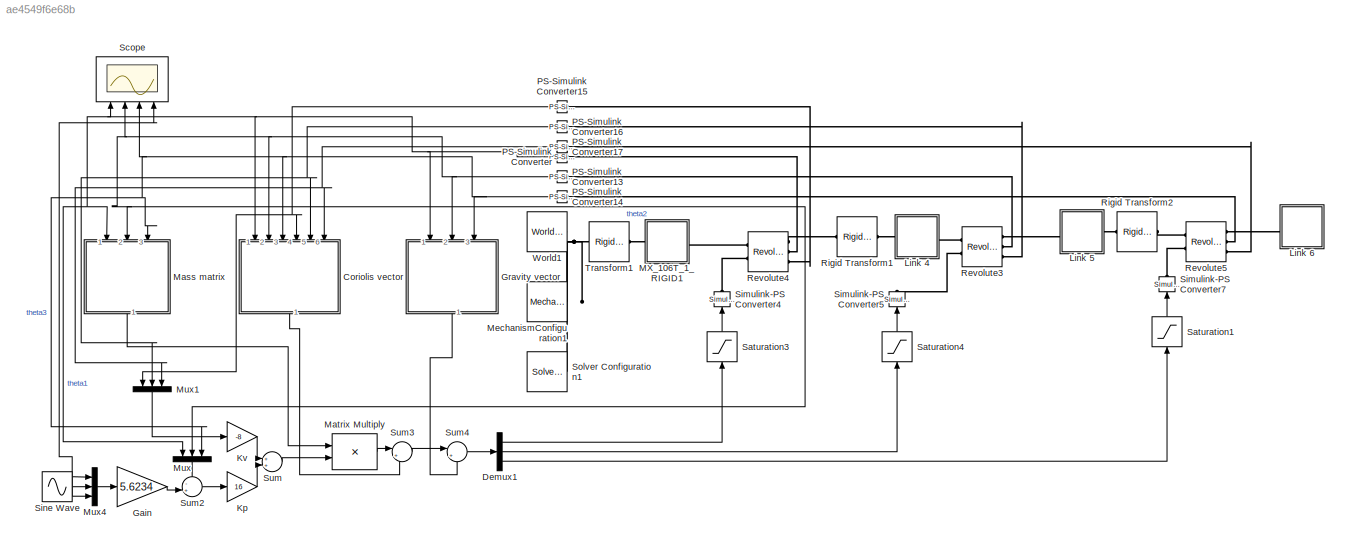
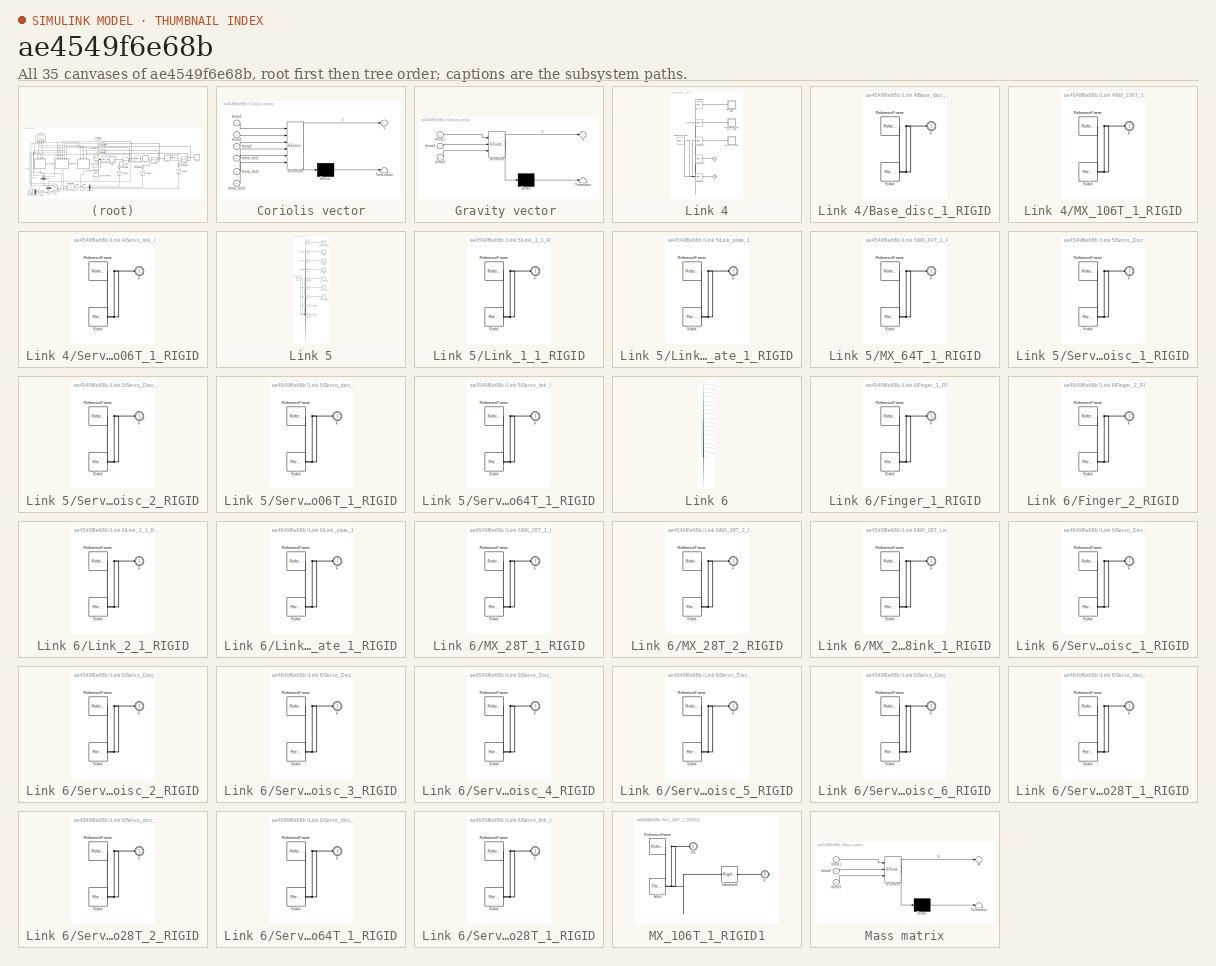
[diagram: thumbnail index - all 35 canvases of the model, root first then tree order]
MODEL slx_ae4549f6e68b
KIND model
CONFIG AbsTol = auto
CONFIG EnableMultiTasking = off
CONFIG FixedStep = auto
CONFIG MaxStep = 1e-2
CONFIG MinStep = auto
CONFIG RelTol = 1e-3
CONFIG SampleTimeConstraint = Unconstrained
CONFIG Solver = VariableStepAuto
CONFIG SolverName = VariableStepAuto
CONFIG StartTime = 0.0
CONFIG StopTime = 10
WORKSPACE source: external: MATLAB File  (data not in archive)
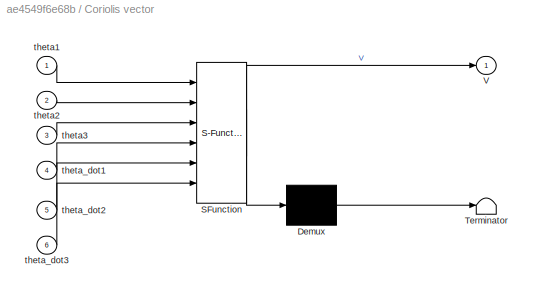
BLOCK [SubSystem] Coriolis vector
  ErrorFcn = Stateflow.Translate.translate
  PermitHierarchicalResolution = ExplicitOnly
  Ports = [6, 1]
  RequestExecContextInheritance = off
  SFBlockType = MATLAB Function
  TreatAsAtomicUnit = on
BLOCK [Demux] Coriolis vector/ Demux 
  Outputs = 1
  Ports = [1, 1]
BLOCK [S-Function] Coriolis vector/ SFunction 
  EnableBusSupport = on
  FunctionName = sf_sfun
  PortCounts = [6 2]
  Ports = [6, 2]
  SFcnIsStateOwnerBlock = off
  SFunctionDeploymentMode = off
  Tag = Stateflow S-Function 4
BLOCK [Terminator] Coriolis vector/ Terminator 
BLOCK [Outport] Coriolis vector/V
  IconDisplay = Port number
BLOCK [Inport] Coriolis vector/theta1
  IconDisplay = Port number
BLOCK [Inport] Coriolis vector/theta2
  IconDisplay = Port number
  Port = 2
BLOCK [Inport] Coriolis vector/theta3
  IconDisplay = Port number
  Port = 3
BLOCK [Inport] Coriolis vector/theta_dot1
  IconDisplay = Port number
  Port = 4
BLOCK [Inport] Coriolis vector/theta_dot2
  IconDisplay = Port number
  Port = 5
BLOCK [Inport] Coriolis vector/theta_dot3
  IconDisplay = Port number
  Port = 6
BLOCK [Demux] Demux1
  DisplayOption = bar
  Outputs = 3
  Ports = [1, 3]
BLOCK [Gain] Gain
  Gain = 5.6234
  OutDataTypeStr = Inherit: Inherit via internal rule
  ParamDataTypeStr = Inherit: Inherit via internal rule
  SaturateOnIntegerOverflow = off
BLOCK [SubSystem] Gravity vector 
  ErrorFcn = Stateflow.Translate.translate
  PermitHierarchicalResolution = ExplicitOnly
  Ports = [3, 1]
  RequestExecContextInheritance = off
  SFBlockType = MATLAB Function
  TreatAsAtomicUnit = on
BLOCK [Demux] Gravity vector / Demux 
  Outputs = 1
  Ports = [1, 1]
BLOCK [S-Function] Gravity vector / SFunction 
  EnableBusSupport = on
  FunctionName = sf_sfun
  PortCounts = [3 2]
  Ports = [3, 2]
  SFcnIsStateOwnerBlock = off
  SFunctionDeploymentMode = off
  Tag = Stateflow S-Function 5
BLOCK [Terminator] Gravity vector / Terminator 
BLOCK [Outport] Gravity vector /G
  IconDisplay = Port number
BLOCK [Inport] Gravity vector /theta1
  IconDisplay = Port number
BLOCK [Inport] Gravity vector /theta2
  IconDisplay = Port number
  Port = 2
BLOCK [Inport] Gravity vector /theta3
  IconDisplay = Port number
  Port = 3
BLOCK [Gain] Kp
  Gain = 16
  OutDataTypeStr = Inherit: Inherit via internal rule
  ParamDataTypeStr = Inherit: Inherit via internal rule
  SaturateOnIntegerOverflow = off
BLOCK [Gain] Kv
  Gain = -8
  OutDataTypeStr = Inherit: Inherit via internal rule
  ParamDataTypeStr = Inherit: Inherit via internal rule
  SaturateOnIntegerOverflow = off
BLOCK [SubSystem] Link 4
  Ports = [0, 0, 0, 0, 0, 1, 1]
  RequestExecContextInheritance = off
BLOCK [SubSystem] Link 4/Base_disc_1_RIGID
  Ports = [0, 0, 0, 0, 0, 1]
  RequestExecContextInheritance = off
BLOCK [PMIOPort] Link 4/Base_disc_1_RIGID/F
  Side = Left
BLOCK [Reference] Link 4/Base_disc_1_RIGID/ReferenceFrame  REF=sm_lib/Frames and
Transforms/Reference
Frame
  Ports = [0, 0, 0, 0, 0, 0, 1]
  SourceBlock = sm_lib/Frames and\nTransforms/Reference\nFrame
  SourceProductBaseCode = MS
  SourceProductName = Simscape Multibody
  SourceType = Reference\nFrame
BLOCK [Reference] Link 4/Base_disc_1_RIGID/Solid  REF=sm_lib/Body Elements/File Solid
  Ports = [0, 0, 0, 0, 0, 0, 1]
  SourceBlock = sm_lib/Body Elements/File Solid
  SourceProductBaseCode = MS
  SourceProductName = Simscape Multibody
  SourceType = File Solid
BLOCK [PMIOPort] Link 4/F
  Port = 2
  Side = Right
BLOCK [PMIOPort] Link 4/F1
  Side = Left
BLOCK [SubSystem] Link 4/MX_106T_1_RIGID
  Ports = [0, 0, 0, 0, 0, 1]
  RequestExecContextInheritance = off
BLOCK [PMIOPort] Link 4/MX_106T_1_RIGID/F
  Side = Left
BLOCK [Reference] Link 4/MX_106T_1_RIGID/ReferenceFrame  REF=sm_lib/Frames and
Transforms/Reference
Frame
  Ports = [0, 0, 0, 0, 0, 0, 1]
  SourceBlock = sm_lib/Frames and\nTransforms/Reference\nFrame
  SourceProductBaseCode = MS
  SourceProductName = Simscape Multibody
  SourceType = Reference\nFrame
BLOCK [Reference] Link 4/MX_106T_1_RIGID/Solid  REF=sm_lib/Body Elements/File Solid
  Ports = [0, 0, 0, 0, 0, 0, 1]
  SourceBlock = sm_lib/Body Elements/File Solid
  SourceProductBaseCode = MS
  SourceProductName = Simscape Multibody
  SourceType = File Solid
BLOCK [Reference] Link 4/ReferenceFrame  REF=sm_lib/Frames and
Transforms/Reference
Frame
  Ports = [0, 0, 0, 0, 0, 0, 1]
  SourceBlock = sm_lib/Frames and\nTransforms/Reference\nFrame
  SourceProductBaseCode = MS
  SourceProductName = Simscape Multibody
  SourceType = Reference\nFrame
BLOCK [SubSystem] Link 4/Servo_link_link_MX_106T_1_RIGID
  Ports = [0, 0, 0, 0, 0, 1]
  RequestExecContextInheritance = off
BLOCK [PMIOPort] Link 4/Servo_link_link_MX_106T_1_RIGID/F
  Side = Left
BLOCK [Reference] Link 4/Servo_link_link_MX_106T_1_RIGID/ReferenceFrame  REF=sm_lib/Frames and
Transforms/Reference
Frame
  Ports = [0, 0, 0, 0, 0, 0, 1]
  SourceBlock = sm_lib/Frames and\nTransforms/Reference\nFrame
  SourceProductBaseCode = MS
  SourceProductName = Simscape Multibody
  SourceType = Reference\nFrame
BLOCK [Reference] Link 4/Servo_link_link_MX_106T_1_RIGID/Solid  REF=sm_lib/Body Elements/File Solid
  Ports = [0, 0, 0, 0, 0, 0, 1]
  SourceBlock = sm_lib/Body Elements/File Solid
  SourceProductBaseCode = MS
  SourceProductName = Simscape Multibody
  SourceType = File Solid
BLOCK [Reference] Link 4/Transform  REF=sm_lib/Frames and
Transforms/Rigid
Transform
  Ports = [0, 0, 0, 0, 0, 1, 1]
  SourceBlock = sm_lib/Frames and\nTransforms/Rigid\nTransform
  SourceProductBaseCode = MS
  SourceProductName = Simscape Multibody
  SourceType = Rigid\nTransform
BLOCK [Reference] Link 4/Transform1  REF=sm_lib/Frames and
Transforms/Rigid
Transform
  Ports = [0, 0, 0, 0, 0, 1, 1]
  SourceBlock = sm_lib/Frames and\nTransforms/Rigid\nTransform
  SourceProductBaseCode = MS
  SourceProductName = Simscape Multibody
  SourceType = Rigid\nTransform
BLOCK [Reference] Link 4/Transform2  REF=sm_lib/Frames and
Transforms/Rigid
Transform
  Ports = [0, 0, 0, 0, 0, 1, 1]
  SourceBlock = sm_lib/Frames and\nTransforms/Rigid\nTransform
  SourceProductBaseCode = MS
  SourceProductName = Simscape Multibody
  SourceType = Rigid\nTransform
BLOCK [Reference] Link 4/Transform3  REF=sm_lib/Frames and
Transforms/Rigid
Transform
  Ports = [0, 0, 0, 0, 0, 1, 1]
  SourceBlock = sm_lib/Frames and\nTransforms/Rigid\nTransform
  SourceProductBaseCode = MS
  SourceProductName = Simscape Multibody
  SourceType = Rigid\nTransform
BLOCK [Reference] Link 4/Transform4  REF=sm_lib/Frames and
Transforms/Rigid
Transform
  Ports = [0, 0, 0, 0, 0, 1, 1]
  SourceBlock = sm_lib/Frames and\nTransforms/Rigid\nTransform
  SourceProductBaseCode = MS
  SourceProductName = Simscape Multibody
  SourceType = Rigid\nTransform
BLOCK [SubSystem] Link 5
  Ports = [0, 0, 0, 0, 0, 1, 1]
  RequestExecContextInheritance = off
BLOCK [PMIOPort] Link 5/F
  Side = Left
BLOCK [PMIOPort] Link 5/F1
  Port = 2
  Side = Right
BLOCK [SubSystem] Link 5/Link_1_1_RIGID
  Ports = [0, 0, 0, 0, 0, 1]
  RequestExecContextInheritance = off
BLOCK [PMIOPort] Link 5/Link_1_1_RIGID/F
  Side = Left
BLOCK [Reference] Link 5/Link_1_1_RIGID/ReferenceFrame  REF=sm_lib/Frames and
Transforms/Reference
Frame
  Ports = [0, 0, 0, 0, 0, 0, 1]
  SourceBlock = sm_lib/Frames and\nTransforms/Reference\nFrame
  SourceProductBaseCode = MS
  SourceProductName = Simscape Multibody
  SourceType = Reference\nFrame
BLOCK [Reference] Link 5/Link_1_1_RIGID/Solid  REF=sm_lib/Body Elements/File Solid
  Ports = [0, 0, 0, 0, 0, 0, 1]
  SourceBlock = sm_lib/Body Elements/File Solid
  SourceProductBaseCode = MS
  SourceProductName = Simscape Multibody
  SourceType = File Solid
BLOCK [SubSystem] Link 5/Link_plate_1_RIGID
  Ports = [0, 0, 0, 0, 0, 1]
  RequestExecContextInheritance = off
BLOCK [PMIOPort] Link 5/Link_plate_1_RIGID/F
  Side = Left
BLOCK [Reference] Link 5/Link_plate_1_RIGID/ReferenceFrame  REF=sm_lib/Frames and
Transforms/Reference
Frame
  Ports = [0, 0, 0, 0, 0, 0, 1]
  SourceBlock = sm_lib/Frames and\nTransforms/Reference\nFrame
  SourceProductBaseCode = MS
  SourceProductName = Simscape Multibody
  SourceType = Reference\nFrame
BLOCK [Reference] Link 5/Link_plate_1_RIGID/Solid  REF=sm_lib/Body Elements/File Solid
  Ports = [0, 0, 0, 0, 0, 0, 1]
  SourceBlock = sm_lib/Body Elements/File Solid
  SourceProductBaseCode = MS
  SourceProductName = Simscape Multibody
  SourceType = File Solid
BLOCK [SubSystem] Link 5/MX_64T_1_RIGID
  Ports = [0, 0, 0, 0, 0, 1]
  RequestExecContextInheritance = off
BLOCK [PMIOPort] Link 5/MX_64T_1_RIGID/F
  Side = Left
BLOCK [Reference] Link 5/MX_64T_1_RIGID/ReferenceFrame  REF=sm_lib/Frames and
Transforms/Reference
Frame
  Ports = [0, 0, 0, 0, 0, 0, 1]
  SourceBlock = sm_lib/Frames and\nTransforms/Reference\nFrame
  SourceProductBaseCode = MS
  SourceProductName = Simscape Multibody
  SourceType = Reference\nFrame
BLOCK [Reference] Link 5/MX_64T_1_RIGID/Solid  REF=sm_lib/Body Elements/File Solid
  Ports = [0, 0, 0, 0, 0, 0, 1]
  SourceBlock = sm_lib/Body Elements/File Solid
  SourceProductBaseCode = MS
  SourceProductName = Simscape Multibody
  SourceType = File Solid
BLOCK [Reference] Link 5/ReferenceFrame  REF=sm_lib/Frames and
Transforms/Reference
Frame
  Ports = [0, 0, 0, 0, 0, 0, 1]
  SourceBlock = sm_lib/Frames and\nTransforms/Reference\nFrame
  SourceProductBaseCode = MS
  SourceProductName = Simscape Multibody
  SourceType = Reference\nFrame
BLOCK [SubSystem] Link 5/Servo_Disc_1_RIGID
  Ports = [0, 0, 0, 0, 0, 1]
  RequestExecContextInheritance = off
BLOCK [PMIOPort] Link 5/Servo_Disc_1_RIGID/F
  Side = Left
BLOCK [Reference] Link 5/Servo_Disc_1_RIGID/ReferenceFrame  REF=sm_lib/Frames and
Transforms/Reference
Frame
  Ports = [0, 0, 0, 0, 0, 0, 1]
  SourceBlock = sm_lib/Frames and\nTransforms/Reference\nFrame
  SourceProductBaseCode = MS
  SourceProductName = Simscape Multibody
  SourceType = Reference\nFrame
BLOCK [Reference] Link 5/Servo_Disc_1_RIGID/Solid  REF=sm_lib/Body Elements/File Solid
  Ports = [0, 0, 0, 0, 0, 0, 1]
  SourceBlock = sm_lib/Body Elements/File Solid
  SourceProductBaseCode = MS
  SourceProductName = Simscape Multibody
  SourceType = File Solid
BLOCK [SubSystem] Link 5/Servo_Disc_2_RIGID
  Ports = [0, 0, 0, 0, 0, 1]
  RequestExecContextInheritance = off
BLOCK [PMIOPort] Link 5/Servo_Disc_2_RIGID/F
  Side = Left
BLOCK [Reference] Link 5/Servo_Disc_2_RIGID/ReferenceFrame  REF=sm_lib/Frames and
Transforms/Reference
Frame
  Ports = [0, 0, 0, 0, 0, 0, 1]
  SourceBlock = sm_lib/Frames and\nTransforms/Reference\nFrame
  SourceProductBaseCode = MS
  SourceProductName = Simscape Multibody
  SourceType = Reference\nFrame
BLOCK [Reference] Link 5/Servo_Disc_2_RIGID/Solid  REF=sm_lib/Body Elements/File Solid
  Ports = [0, 0, 0, 0, 0, 0, 1]
  SourceBlock = sm_lib/Body Elements/File Solid
  SourceProductBaseCode = MS
  SourceProductName = Simscape Multibody
  SourceType = File Solid
BLOCK [SubSystem] Link 5/Servo_disc_link_MX_106T_1_RIGID
  Ports = [0, 0, 0, 0, 0, 1]
  RequestExecContextInheritance = off
BLOCK [PMIOPort] Link 5/Servo_disc_link_MX_106T_1_RIGID/F
  Side = Left
BLOCK [Reference] Link 5/Servo_disc_link_MX_106T_1_RIGID/ReferenceFrame  REF=sm_lib/Frames and
Transforms/Reference
Frame
  Ports = [0, 0, 0, 0, 0, 0, 1]
  SourceBlock = sm_lib/Frames and\nTransforms/Reference\nFrame
  SourceProductBaseCode = MS
  SourceProductName = Simscape Multibody
  SourceType = Reference\nFrame
BLOCK [Reference] Link 5/Servo_disc_link_MX_106T_1_RIGID/Solid  REF=sm_lib/Body Elements/File Solid
  Ports = [0, 0, 0, 0, 0, 0, 1]
  SourceBlock = sm_lib/Body Elements/File Solid
  SourceProductBaseCode = MS
  SourceProductName = Simscape Multibody
  SourceType = File Solid
BLOCK [SubSystem] Link 5/Servo_link_link_MX_64T_1_RIGID
  Ports = [0, 0, 0, 0, 0, 1]
  RequestExecContextInheritance = off
BLOCK [PMIOPort] Link 5/Servo_link_link_MX_64T_1_RIGID/F
  Side = Left
BLOCK [Reference] Link 5/Servo_link_link_MX_64T_1_RIGID/ReferenceFrame  REF=sm_lib/Frames and
Transforms/Reference
Frame
  Ports = [0, 0, 0, 0, 0, 0, 1]
  SourceBlock = sm_lib/Frames and\nTransforms/Reference\nFrame
  SourceProductBaseCode = MS
  SourceProductName = Simscape Multibody
  SourceType = Reference\nFrame
BLOCK [Reference] Link 5/Servo_link_link_MX_64T_1_RIGID/Solid  REF=sm_lib/Body Elements/File Solid
  Ports = [0, 0, 0, 0, 0, 0, 1]
  SourceBlock = sm_lib/Body Elements/File Solid
  SourceProductBaseCode = MS
  SourceProductName = Simscape Multibody
  SourceType = File Solid
BLOCK [Reference] Link 5/Transform  REF=sm_lib/Frames and
Transforms/Rigid
Transform
  Ports = [0, 0, 0, 0, 0, 1, 1]
  SourceBlock = sm_lib/Frames and\nTransforms/Rigid\nTransform
  SourceProductBaseCode = MS
  SourceProductName = Simscape Multibody
  SourceType = Rigid\nTransform
BLOCK [Reference] Link 5/Transform1  REF=sm_lib/Frames and
Transforms/Rigid
Transform
  Ports = [0, 0, 0, 0, 0, 1, 1]
  SourceBlock = sm_lib/Frames and\nTransforms/Rigid\nTransform
  SourceProductBaseCode = MS
  SourceProductName = Simscape Multibody
  SourceType = Rigid\nTransform
BLOCK [Reference] Link 5/Transform2  REF=sm_lib/Frames and
Transforms/Rigid
Transform
  Ports = [0, 0, 0, 0, 0, 1, 1]
  SourceBlock = sm_lib/Frames and\nTransforms/Rigid\nTransform
  SourceProductBaseCode = MS
  SourceProductName = Simscape Multibody
  SourceType = Rigid\nTransform
BLOCK [Reference] Link 5/Transform3  REF=sm_lib/Frames and
Transforms/Rigid
Transform
  Ports = [0, 0, 0, 0, 0, 1, 1]
  SourceBlock = sm_lib/Frames and\nTransforms/Rigid\nTransform
  SourceProductBaseCode = MS
  SourceProductName = Simscape Multibody
  SourceType = Rigid\nTransform
BLOCK [Reference] Link 5/Transform4  REF=sm_lib/Frames and
Transforms/Rigid
Transform
  Ports = [0, 0, 0, 0, 0, 1, 1]
  SourceBlock = sm_lib/Frames and\nTransforms/Rigid\nTransform
  SourceProductBaseCode = MS
  SourceProductName = Simscape Multibody
  SourceType = Rigid\nTransform
BLOCK [Reference] Link 5/Transform5  REF=sm_lib/Frames and
Transforms/Rigid
Transform
  Ports = [0, 0, 0, 0, 0, 1, 1]
  SourceBlock = sm_lib/Frames and\nTransforms/Rigid\nTransform
  SourceProductBaseCode = MS
  SourceProductName = Simscape Multibody
  SourceType = Rigid\nTransform
BLOCK [Reference] Link 5/Transform6  REF=sm_lib/Frames and
Transforms/Rigid
Transform
  Ports = [0, 0, 0, 0, 0, 1, 1]
  SourceBlock = sm_lib/Frames and\nTransforms/Rigid\nTransform
  SourceProductBaseCode = MS
  SourceProductName = Simscape Multibody
  SourceType = Rigid\nTransform
BLOCK [Reference] Link 5/Transform7  REF=sm_lib/Frames and
Transforms/Rigid
Transform
  Ports = [0, 0, 0, 0, 0, 1, 1]
  SourceBlock = sm_lib/Frames and\nTransforms/Rigid\nTransform
  SourceProductBaseCode = MS
  SourceProductName = Simscape Multibody
  SourceType = Rigid\nTransform
BLOCK [Reference] Link 5/Transform8  REF=sm_lib/Frames and
Transforms/Rigid
Transform
  Ports = [0, 0, 0, 0, 0, 1, 1]
  SourceBlock = sm_lib/Frames and\nTransforms/Rigid\nTransform
  SourceProductBaseCode = MS
  SourceProductName = Simscape Multibody
  SourceType = Rigid\nTransform
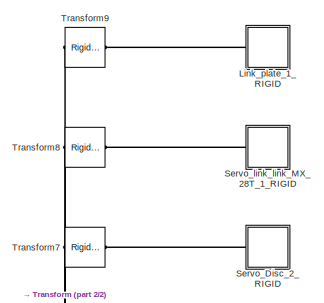
[diagram: Link 6 - part 1/2, full width, top band]
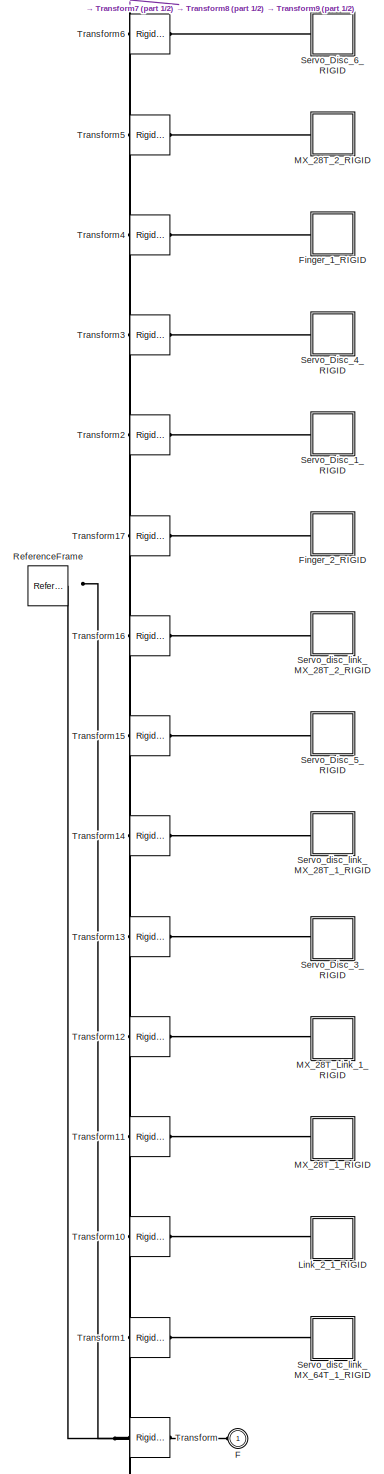
[diagram: Link 6 - part 2/2, full width, middle band]
BLOCK [SubSystem] Link 6
  Ports = [0, 0, 0, 0, 0, 1]
  RequestExecContextInheritance = off
BLOCK [PMIOPort] Link 6/F
  Side = Left
BLOCK [SubSystem] Link 6/Finger_1_RIGID
  Ports = [0, 0, 0, 0, 0, 1]
  RequestExecContextInheritance = off
BLOCK [PMIOPort] Link 6/Finger_1_RIGID/F
  Side = Left
BLOCK [Reference] Link 6/Finger_1_RIGID/ReferenceFrame  REF=sm_lib/Frames and
Transforms/Reference
Frame
  Ports = [0, 0, 0, 0, 0, 0, 1]
  SourceBlock = sm_lib/Frames and\nTransforms/Reference\nFrame
  SourceProductBaseCode = MS
  SourceProductName = Simscape Multibody
  SourceType = Reference\nFrame
BLOCK [Reference] Link 6/Finger_1_RIGID/Solid  REF=sm_lib/Body Elements/File Solid
  Ports = [0, 0, 0, 0, 0, 0, 1]
  SourceBlock = sm_lib/Body Elements/File Solid
  SourceProductBaseCode = MS
  SourceProductName = Simscape Multibody
  SourceType = File Solid
BLOCK [SubSystem] Link 6/Finger_2_RIGID
  Ports = [0, 0, 0, 0, 0, 1]
  RequestExecContextInheritance = off
BLOCK [PMIOPort] Link 6/Finger_2_RIGID/F
  Side = Left
BLOCK [Reference] Link 6/Finger_2_RIGID/ReferenceFrame  REF=sm_lib/Frames and
Transforms/Reference
Frame
  Ports = [0, 0, 0, 0, 0, 0, 1]
  SourceBlock = sm_lib/Frames and\nTransforms/Reference\nFrame
  SourceProductBaseCode = MS
  SourceProductName = Simscape Multibody
  SourceType = Reference\nFrame
BLOCK [Reference] Link 6/Finger_2_RIGID/Solid  REF=sm_lib/Body Elements/File Solid
  Ports = [0, 0, 0, 0, 0, 0, 1]
  SourceBlock = sm_lib/Body Elements/File Solid
  SourceProductBaseCode = MS
  SourceProductName = Simscape Multibody
  SourceType = File Solid
BLOCK [SubSystem] Link 6/Link_2_1_RIGID
  Ports = [0, 0, 0, 0, 0, 1]
  RequestExecContextInheritance = off
BLOCK [PMIOPort] Link 6/Link_2_1_RIGID/F
  Side = Left
BLOCK [Reference] Link 6/Link_2_1_RIGID/ReferenceFrame  REF=sm_lib/Frames and
Transforms/Reference
Frame
  Ports = [0, 0, 0, 0, 0, 0, 1]
  SourceBlock = sm_lib/Frames and\nTransforms/Reference\nFrame
  SourceProductBaseCode = MS
  SourceProductName = Simscape Multibody
  SourceType = Reference\nFrame
BLOCK [Reference] Link 6/Link_2_1_RIGID/Solid  REF=sm_lib/Body Elements/File Solid
  Ports = [0, 0, 0, 0, 0, 0, 1]
  SourceBlock = sm_lib/Body Elements/File Solid
  SourceProductBaseCode = MS
  SourceProductName = Simscape Multibody
  SourceType = File Solid
BLOCK [SubSystem] Link 6/Link_plate_1_RIGID
  Ports = [0, 0, 0, 0, 0, 1]
  RequestExecContextInheritance = off
BLOCK [PMIOPort] Link 6/Link_plate_1_RIGID/F
  Side = Left
BLOCK [Reference] Link 6/Link_plate_1_RIGID/ReferenceFrame  REF=sm_lib/Frames and
Transforms/Reference
Frame
  Ports = [0, 0, 0, 0, 0, 0, 1]
  SourceBlock = sm_lib/Frames and\nTransforms/Reference\nFrame
  SourceProductBaseCode = MS
  SourceProductName = Simscape Multibody
  SourceType = Reference\nFrame
BLOCK [Reference] Link 6/Link_plate_1_RIGID/Solid  REF=sm_lib/Body Elements/File Solid
  Ports = [0, 0, 0, 0, 0, 0, 1]
  SourceBlock = sm_lib/Body Elements/File Solid
  SourceProductBaseCode = MS
  SourceProductName = Simscape Multibody
  SourceType = File Solid
BLOCK [SubSystem] Link 6/MX_28T_1_RIGID
  Ports = [0, 0, 0, 0, 0, 1]
  RequestExecContextInheritance = off
BLOCK [PMIOPort] Link 6/MX_28T_1_RIGID/F
  Side = Left
BLOCK [Reference] Link 6/MX_28T_1_RIGID/ReferenceFrame  REF=sm_lib/Frames and
Transforms/Reference
Frame
  Ports = [0, 0, 0, 0, 0, 0, 1]
  SourceBlock = sm_lib/Frames and\nTransforms/Reference\nFrame
  SourceProductBaseCode = MS
  SourceProductName = Simscape Multibody
  SourceType = Reference\nFrame
BLOCK [Reference] Link 6/MX_28T_1_RIGID/Solid  REF=sm_lib/Body Elements/File Solid
  Ports = [0, 0, 0, 0, 0, 0, 1]
  SourceBlock = sm_lib/Body Elements/File Solid
  SourceProductBaseCode = MS
  SourceProductName = Simscape Multibody
  SourceType = File Solid
BLOCK [SubSystem] Link 6/MX_28T_2_RIGID
  Ports = [0, 0, 0, 0, 0, 1]
  RequestExecContextInheritance = off
BLOCK [PMIOPort] Link 6/MX_28T_2_RIGID/F
  Side = Left
BLOCK [Reference] Link 6/MX_28T_2_RIGID/ReferenceFrame  REF=sm_lib/Frames and
Transforms/Reference
Frame
  Ports = [0, 0, 0, 0, 0, 0, 1]
  SourceBlock = sm_lib/Frames and\nTransforms/Reference\nFrame
  SourceProductBaseCode = MS
  SourceProductName = Simscape Multibody
  SourceType = Reference\nFrame
BLOCK [Reference] Link 6/MX_28T_2_RIGID/Solid  REF=sm_lib/Body Elements/File Solid
  Ports = [0, 0, 0, 0, 0, 0, 1]
  SourceBlock = sm_lib/Body Elements/File Solid
  SourceProductBaseCode = MS
  SourceProductName = Simscape Multibody
  SourceType = File Solid
BLOCK [SubSystem] Link 6/MX_28T_Link_1_RIGID
  Ports = [0, 0, 0, 0, 0, 1]
  RequestExecContextInheritance = off
BLOCK [PMIOPort] Link 6/MX_28T_Link_1_RIGID/F
  Side = Left
BLOCK [Reference] Link 6/MX_28T_Link_1_RIGID/ReferenceFrame  REF=sm_lib/Frames and
Transforms/Reference
Frame
  Ports = [0, 0, 0, 0, 0, 0, 1]
  SourceBlock = sm_lib/Frames and\nTransforms/Reference\nFrame
  SourceProductBaseCode = MS
  SourceProductName = Simscape Multibody
  SourceType = Reference\nFrame
BLOCK [Reference] Link 6/MX_28T_Link_1_RIGID/Solid  REF=sm_lib/Body Elements/File Solid
  Ports = [0, 0, 0, 0, 0, 0, 1]
  SourceBlock = sm_lib/Body Elements/File Solid
  SourceProductBaseCode = MS
  SourceProductName = Simscape Multibody
  SourceType = File Solid
BLOCK [Reference] Link 6/ReferenceFrame  REF=sm_lib/Frames and
Transforms/Reference
Frame
  Ports = [0, 0, 0, 0, 0, 0, 1]
  SourceBlock = sm_lib/Frames and\nTransforms/Reference\nFrame
  SourceProductBaseCode = MS
  SourceProductName = Simscape Multibody
  SourceType = Reference\nFrame
BLOCK [SubSystem] Link 6/Servo_Disc_1_RIGID
  Ports = [0, 0, 0, 0, 0, 1]
  RequestExecContextInheritance = off
BLOCK [PMIOPort] Link 6/Servo_Disc_1_RIGID/F
  Side = Left
BLOCK [Reference] Link 6/Servo_Disc_1_RIGID/ReferenceFrame  REF=sm_lib/Frames and
Transforms/Reference
Frame
  Ports = [0, 0, 0, 0, 0, 0, 1]
  SourceBlock = sm_lib/Frames and\nTransforms/Reference\nFrame
  SourceProductBaseCode = MS
  SourceProductName = Simscape Multibody
  SourceType = Reference\nFrame
BLOCK [Reference] Link 6/Servo_Disc_1_RIGID/Solid  REF=sm_lib/Body Elements/File Solid
  Ports = [0, 0, 0, 0, 0, 0, 1]
  SourceBlock = sm_lib/Body Elements/File Solid
  SourceProductBaseCode = MS
  SourceProductName = Simscape Multibody
  SourceType = File Solid
BLOCK [SubSystem] Link 6/Servo_Disc_2_RIGID
  Ports = [0, 0, 0, 0, 0, 1]
  RequestExecContextInheritance = off
BLOCK [PMIOPort] Link 6/Servo_Disc_2_RIGID/F
  Side = Left
BLOCK [Reference] Link 6/Servo_Disc_2_RIGID/ReferenceFrame  REF=sm_lib/Frames and
Transforms/Reference
Frame
  Ports = [0, 0, 0, 0, 0, 0, 1]
  SourceBlock = sm_lib/Frames and\nTransforms/Reference\nFrame
  SourceProductBaseCode = MS
  SourceProductName = Simscape Multibody
  SourceType = Reference\nFrame
BLOCK [Reference] Link 6/Servo_Disc_2_RIGID/Solid  REF=sm_lib/Body Elements/File Solid
  Ports = [0, 0, 0, 0, 0, 0, 1]
  SourceBlock = sm_lib/Body Elements/File Solid
  SourceProductBaseCode = MS
  SourceProductName = Simscape Multibody
  SourceType = File Solid
BLOCK [SubSystem] Link 6/Servo_Disc_3_RIGID
  Ports = [0, 0, 0, 0, 0, 1]
  RequestExecContextInheritance = off
BLOCK [PMIOPort] Link 6/Servo_Disc_3_RIGID/F
  Side = Left
BLOCK [Reference] Link 6/Servo_Disc_3_RIGID/ReferenceFrame  REF=sm_lib/Frames and
Transforms/Reference
Frame
  Ports = [0, 0, 0, 0, 0, 0, 1]
  SourceBlock = sm_lib/Frames and\nTransforms/Reference\nFrame
  SourceProductBaseCode = MS
  SourceProductName = Simscape Multibody
  SourceType = Reference\nFrame
BLOCK [Reference] Link 6/Servo_Disc_3_RIGID/Solid  REF=sm_lib/Body Elements/File Solid
  Ports = [0, 0, 0, 0, 0, 0, 1]
  SourceBlock = sm_lib/Body Elements/File Solid
  SourceProductBaseCode = MS
  SourceProductName = Simscape Multibody
  SourceType = File Solid
BLOCK [SubSystem] Link 6/Servo_Disc_4_RIGID
  Ports = [0, 0, 0, 0, 0, 1]
  RequestExecContextInheritance = off
BLOCK [PMIOPort] Link 6/Servo_Disc_4_RIGID/F
  Side = Left
BLOCK [Reference] Link 6/Servo_Disc_4_RIGID/ReferenceFrame  REF=sm_lib/Frames and
Transforms/Reference
Frame
  Ports = [0, 0, 0, 0, 0, 0, 1]
  SourceBlock = sm_lib/Frames and\nTransforms/Reference\nFrame
  SourceProductBaseCode = MS
  SourceProductName = Simscape Multibody
  SourceType = Reference\nFrame
BLOCK [Reference] Link 6/Servo_Disc_4_RIGID/Solid  REF=sm_lib/Body Elements/File Solid
  Ports = [0, 0, 0, 0, 0, 0, 1]
  SourceBlock = sm_lib/Body Elements/File Solid
  SourceProductBaseCode = MS
  SourceProductName = Simscape Multibody
  SourceType = File Solid
BLOCK [SubSystem] Link 6/Servo_Disc_5_RIGID
  Ports = [0, 0, 0, 0, 0, 1]
  RequestExecContextInheritance = off
BLOCK [PMIOPort] Link 6/Servo_Disc_5_RIGID/F
  Side = Left
BLOCK [Reference] Link 6/Servo_Disc_5_RIGID/ReferenceFrame  REF=sm_lib/Frames and
Transforms/Reference
Frame
  Ports = [0, 0, 0, 0, 0, 0, 1]
  SourceBlock = sm_lib/Frames and\nTransforms/Reference\nFrame
  SourceProductBaseCode = MS
  SourceProductName = Simscape Multibody
  SourceType = Reference\nFrame
BLOCK [Reference] Link 6/Servo_Disc_5_RIGID/Solid  REF=sm_lib/Body Elements/File Solid
  Ports = [0, 0, 0, 0, 0, 0, 1]
  SourceBlock = sm_lib/Body Elements/File Solid
  SourceProductBaseCode = MS
  SourceProductName = Simscape Multibody
  SourceType = File Solid
BLOCK [SubSystem] Link 6/Servo_Disc_6_RIGID
  Ports = [0, 0, 0, 0, 0, 1]
  RequestExecContextInheritance = off
BLOCK [PMIOPort] Link 6/Servo_Disc_6_RIGID/F
  Side = Left
BLOCK [Reference] Link 6/Servo_Disc_6_RIGID/ReferenceFrame  REF=sm_lib/Frames and
Transforms/Reference
Frame
  Ports = [0, 0, 0, 0, 0, 0, 1]
  SourceBlock = sm_lib/Frames and\nTransforms/Reference\nFrame
  SourceProductBaseCode = MS
  SourceProductName = Simscape Multibody
  SourceType = Reference\nFrame
BLOCK [Reference] Link 6/Servo_Disc_6_RIGID/Solid  REF=sm_lib/Body Elements/File Solid
  Ports = [0, 0, 0, 0, 0, 0, 1]
  SourceBlock = sm_lib/Body Elements/File Solid
  SourceProductBaseCode = MS
  SourceProductName = Simscape Multibody
  SourceType = File Solid
BLOCK [SubSystem] Link 6/Servo_disc_link_MX_28T_1_RIGID
  Ports = [0, 0, 0, 0, 0, 1]
  RequestExecContextInheritance = off
BLOCK [PMIOPort] Link 6/Servo_disc_link_MX_28T_1_RIGID/F
  Side = Left
BLOCK [Reference] Link 6/Servo_disc_link_MX_28T_1_RIGID/ReferenceFrame  REF=sm_lib/Frames and
Transforms/Reference
Frame
  Ports = [0, 0, 0, 0, 0, 0, 1]
  SourceBlock = sm_lib/Frames and\nTransforms/Reference\nFrame
  SourceProductBaseCode = MS
  SourceProductName = Simscape Multibody
  SourceType = Reference\nFrame
BLOCK [Reference] Link 6/Servo_disc_link_MX_28T_1_RIGID/Solid  REF=sm_lib/Body Elements/File Solid
  Ports = [0, 0, 0, 0, 0, 0, 1]
  SourceBlock = sm_lib/Body Elements/File Solid
  SourceProductBaseCode = MS
  SourceProductName = Simscape Multibody
  SourceType = File Solid
BLOCK [SubSystem] Link 6/Servo_disc_link_MX_28T_2_RIGID
  Ports = [0, 0, 0, 0, 0, 1]
  RequestExecContextInheritance = off
BLOCK [PMIOPort] Link 6/Servo_disc_link_MX_28T_2_RIGID/F
  Side = Left
BLOCK [Reference] Link 6/Servo_disc_link_MX_28T_2_RIGID/ReferenceFrame  REF=sm_lib/Frames and
Transforms/Reference
Frame
  Ports = [0, 0, 0, 0, 0, 0, 1]
  SourceBlock = sm_lib/Frames and\nTransforms/Reference\nFrame
  SourceProductBaseCode = MS
  SourceProductName = Simscape Multibody
  SourceType = Reference\nFrame
BLOCK [Reference] Link 6/Servo_disc_link_MX_28T_2_RIGID/Solid  REF=sm_lib/Body Elements/File Solid
  Ports = [0, 0, 0, 0, 0, 0, 1]
  SourceBlock = sm_lib/Body Elements/File Solid
  SourceProductBaseCode = MS
  SourceProductName = Simscape Multibody
  SourceType = File Solid
BLOCK [SubSystem] Link 6/Servo_disc_link_MX_64T_1_RIGID
  Ports = [0, 0, 0, 0, 0, 1]
  RequestExecContextInheritance = off
BLOCK [PMIOPort] Link 6/Servo_disc_link_MX_64T_1_RIGID/F
  Side = Left
BLOCK [Reference] Link 6/Servo_disc_link_MX_64T_1_RIGID/ReferenceFrame  REF=sm_lib/Frames and
Transforms/Reference
Frame
  Ports = [0, 0, 0, 0, 0, 0, 1]
  SourceBlock = sm_lib/Frames and\nTransforms/Reference\nFrame
  SourceProductBaseCode = MS
  SourceProductName = Simscape Multibody
  SourceType = Reference\nFrame
BLOCK [Reference] Link 6/Servo_disc_link_MX_64T_1_RIGID/Solid  REF=sm_lib/Body Elements/File Solid
  Ports = [0, 0, 0, 0, 0, 0, 1]
  SourceBlock = sm_lib/Body Elements/File Solid
  SourceProductBaseCode = MS
  SourceProductName = Simscape Multibody
  SourceType = File Solid
BLOCK [SubSystem] Link 6/Servo_link_link_MX_28T_1_RIGID
  Ports = [0, 0, 0, 0, 0, 1]
  RequestExecContextInheritance = off
BLOCK [PMIOPort] Link 6/Servo_link_link_MX_28T_1_RIGID/F
  Side = Left
BLOCK [Reference] Link 6/Servo_link_link_MX_28T_1_RIGID/ReferenceFrame  REF=sm_lib/Frames and
Transforms/Reference
Frame
  Ports = [0, 0, 0, 0, 0, 0, 1]
  SourceBlock = sm_lib/Frames and\nTransforms/Reference\nFrame
  SourceProductBaseCode = MS
  SourceProductName = Simscape Multibody
  SourceType = Reference\nFrame
BLOCK [Reference] Link 6/Servo_link_link_MX_28T_1_RIGID/Solid  REF=sm_lib/Body Elements/File Solid
  Ports = [0, 0, 0, 0, 0, 0, 1]
  SourceBlock = sm_lib/Body Elements/File Solid
  SourceProductBaseCode = MS
  SourceProductName = Simscape Multibody
  SourceType = File Solid
BLOCK [Reference] Link 6/Transform  REF=sm_lib/Frames and
Transforms/Rigid
Transform
  Ports = [0, 0, 0, 0, 0, 1, 1]
  SourceBlock = sm_lib/Frames and\nTransforms/Rigid\nTransform
  SourceProductBaseCode = MS
  SourceProductName = Simscape Multibody
  SourceType = Rigid\nTransform
BLOCK [Reference] Link 6/Transform1  REF=sm_lib/Frames and
Transforms/Rigid
Transform
  Ports = [0, 0, 0, 0, 0, 1, 1]
  SourceBlock = sm_lib/Frames and\nTransforms/Rigid\nTransform
  SourceProductBaseCode = MS
  SourceProductName = Simscape Multibody
  SourceType = Rigid\nTransform
BLOCK [Reference] Link 6/Transform10  REF=sm_lib/Frames and
Transforms/Rigid
Transform
  Ports = [0, 0, 0, 0, 0, 1, 1]
  SourceBlock = sm_lib/Frames and\nTransforms/Rigid\nTransform
  SourceProductBaseCode = MS
  SourceProductName = Simscape Multibody
  SourceType = Rigid\nTransform
BLOCK [Reference] Link 6/Transform11  REF=sm_lib/Frames and
Transforms/Rigid
Transform
  Ports = [0, 0, 0, 0, 0, 1, 1]
  SourceBlock = sm_lib/Frames and\nTransforms/Rigid\nTransform
  SourceProductBaseCode = MS
  SourceProductName = Simscape Multibody
  SourceType = Rigid\nTransform
BLOCK [Reference] Link 6/Transform12  REF=sm_lib/Frames and
Transforms/Rigid
Transform
  Ports = [0, 0, 0, 0, 0, 1, 1]
  SourceBlock = sm_lib/Frames and\nTransforms/Rigid\nTransform
  SourceProductBaseCode = MS
  SourceProductName = Simscape Multibody
  SourceType = Rigid\nTransform
BLOCK [Reference] Link 6/Transform13  REF=sm_lib/Frames and
Transforms/Rigid
Transform
  Ports = [0, 0, 0, 0, 0, 1, 1]
  SourceBlock = sm_lib/Frames and\nTransforms/Rigid\nTransform
  SourceProductBaseCode = MS
  SourceProductName = Simscape Multibody
  SourceType = Rigid\nTransform
BLOCK [Reference] Link 6/Transform14  REF=sm_lib/Frames and
Transforms/Rigid
Transform
  Ports = [0, 0, 0, 0, 0, 1, 1]
  SourceBlock = sm_lib/Frames and\nTransforms/Rigid\nTransform
  SourceProductBaseCode = MS
  SourceProductName = Simscape Multibody
  SourceType = Rigid\nTransform
BLOCK [Reference] Link 6/Transform15  REF=sm_lib/Frames and
Transforms/Rigid
Transform
  Ports = [0, 0, 0, 0, 0, 1, 1]
  SourceBlock = sm_lib/Frames and\nTransforms/Rigid\nTransform
  SourceProductBaseCode = MS
  SourceProductName = Simscape Multibody
  SourceType = Rigid\nTransform
BLOCK [Reference] Link 6/Transform16  REF=sm_lib/Frames and
Transforms/Rigid
Transform
  Ports = [0, 0, 0, 0, 0, 1, 1]
  SourceBlock = sm_lib/Frames and\nTransforms/Rigid\nTransform
  SourceProductBaseCode = MS
  SourceProductName = Simscape Multibody
  SourceType = Rigid\nTransform
BLOCK [Reference] Link 6/Transform17  REF=sm_lib/Frames and
Transforms/Rigid
Transform
  Ports = [0, 0, 0, 0, 0, 1, 1]
  SourceBlock = sm_lib/Frames and\nTransforms/Rigid\nTransform
  SourceProductBaseCode = MS
  SourceProductName = Simscape Multibody
  SourceType = Rigid\nTransform
BLOCK [Reference] Link 6/Transform2  REF=sm_lib/Frames and
Transforms/Rigid
Transform
  Ports = [0, 0, 0, 0, 0, 1, 1]
  SourceBlock = sm_lib/Frames and\nTransforms/Rigid\nTransform
  SourceProductBaseCode = MS
  SourceProductName = Simscape Multibody
  SourceType = Rigid\nTransform
BLOCK [Reference] Link 6/Transform3  REF=sm_lib/Frames and
Transforms/Rigid
Transform
  Ports = [0, 0, 0, 0, 0, 1, 1]
  SourceBlock = sm_lib/Frames and\nTransforms/Rigid\nTransform
  SourceProductBaseCode = MS
  SourceProductName = Simscape Multibody
  SourceType = Rigid\nTransform
BLOCK [Reference] Link 6/Transform4  REF=sm_lib/Frames and
Transforms/Rigid
Transform
  Ports = [0, 0, 0, 0, 0, 1, 1]
  SourceBlock = sm_lib/Frames and\nTransforms/Rigid\nTransform
  SourceProductBaseCode = MS
  SourceProductName = Simscape Multibody
  SourceType = Rigid\nTransform
BLOCK [Reference] Link 6/Transform5  REF=sm_lib/Frames and
Transforms/Rigid
Transform
  Ports = [0, 0, 0, 0, 0, 1, 1]
  SourceBlock = sm_lib/Frames and\nTransforms/Rigid\nTransform
  SourceProductBaseCode = MS
  SourceProductName = Simscape Multibody
  SourceType = Rigid\nTransform
BLOCK [Reference] Link 6/Transform6  REF=sm_lib/Frames and
Transforms/Rigid
Transform
  Ports = [0, 0, 0, 0, 0, 1, 1]
  SourceBlock = sm_lib/Frames and\nTransforms/Rigid\nTransform
  SourceProductBaseCode = MS
  SourceProductName = Simscape Multibody
  SourceType = Rigid\nTransform
BLOCK [Reference] Link 6/Transform7  REF=sm_lib/Frames and
Transforms/Rigid
Transform
  Ports = [0, 0, 0, 0, 0, 1, 1]
  SourceBlock = sm_lib/Frames and\nTransforms/Rigid\nTransform
  SourceProductBaseCode = MS
  SourceProductName = Simscape Multibody
  SourceType = Rigid\nTransform
BLOCK [Reference] Link 6/Transform8  REF=sm_lib/Frames and
Transforms/Rigid
Transform
  Ports = [0, 0, 0, 0, 0, 1, 1]
  SourceBlock = sm_lib/Frames and\nTransforms/Rigid\nTransform
  SourceProductBaseCode = MS
  SourceProductName = Simscape Multibody
  SourceType = Rigid\nTransform
BLOCK [Reference] Link 6/Transform9  REF=sm_lib/Frames and
Transforms/Rigid
Transform
  Ports = [0, 0, 0, 0, 0, 1, 1]
  SourceBlock = sm_lib/Frames and\nTransforms/Rigid\nTransform
  SourceProductBaseCode = MS
  SourceProductName = Simscape Multibody
  SourceType = Rigid\nTransform
BLOCK [SubSystem] MX_106T_1_RIGID1
  Ports = [0, 0, 0, 0, 0, 1, 1]
  RequestExecContextInheritance = off
BLOCK [PMIOPort] MX_106T_1_RIGID1/F
  Port = 2
  Side = Right
BLOCK [PMIOPort] MX_106T_1_RIGID1/F1
  Side = Left
BLOCK [Reference] MX_106T_1_RIGID1/ReferenceFrame  REF=sm_lib/Frames and
Transforms/Reference
Frame
  Ports = [0, 0, 0, 0, 0, 0, 1]
  SourceBlock = sm_lib/Frames and\nTransforms/Reference\nFrame
  SourceProductBaseCode = MS
  SourceProductName = Simscape Multibody
  SourceType = Reference\nFrame
BLOCK [Reference] MX_106T_1_RIGID1/Solid  REF=sm_lib/Body Elements/File Solid
  Ports = [0, 0, 0, 0, 0, 0, 1]
  SourceBlock = sm_lib/Body Elements/File Solid
  SourceProductBaseCode = MS
  SourceProductName = Simscape Multibody
  SourceType = File Solid
BLOCK [Reference] MX_106T_1_RIGID1/Transform  REF=sm_lib/Frames and
Transforms/Rigid
Transform
  Ports = [0, 0, 0, 0, 0, 1, 1]
  SourceBlock = sm_lib/Frames and\nTransforms/Rigid\nTransform
  SourceProductBaseCode = MS
  SourceProductName = Simscape Multibody
  SourceType = Rigid\nTransform
BLOCK [SubSystem] Mass matrix
  ErrorFcn = Stateflow.Translate.translate
  PermitHierarchicalResolution = ExplicitOnly
  Ports = [3, 1]
  RequestExecContextInheritance = off
  SFBlockType = MATLAB Function
  TreatAsAtomicUnit = on
BLOCK [Demux] Mass matrix/ Demux 
  Outputs = 1
  Ports = [1, 1]
BLOCK [S-Function] Mass matrix/ SFunction 
  EnableBusSupport = on
  FunctionName = sf_sfun
  PortCounts = [3 2]
  Ports = [3, 2]
  SFcnIsStateOwnerBlock = off
  SFunctionDeploymentMode = off
  Tag = Stateflow S-Function 3
BLOCK [Terminator] Mass matrix/ Terminator 
BLOCK [Outport] Mass matrix/M
  IconDisplay = Port number
BLOCK [Inport] Mass matrix/theta1
  IconDisplay = Port number
BLOCK [Inport] Mass matrix/theta2
  IconDisplay = Port number
  Port = 2
BLOCK [Inport] Mass matrix/theta3
  IconDisplay = Port number
  Port = 3
BLOCK [Product] Matrix Multiply
  InputSameDT = off
  Multiplication = Matrix(*)
  OutDataTypeStr = Inherit: Inherit via internal rule
  Ports = [2, 1]
  RndMeth = Floor
  SaturateOnIntegerOverflow = off
BLOCK [Reference] MechanismConfiguration1  REF=sm_lib/Utilities/Mechanism
Configuration
  Ports = [0, 0, 0, 0, 0, 0, 1]
  SourceBlock = sm_lib/Utilities/Mechanism\nConfiguration
  SourceProductBaseCode = MS
  SourceProductName = Simscape Multibody
  SourceType = Mechanism\nConfiguration
BLOCK [Mux] Mux
  DisplayOption = bar
  Inputs = 3
  Ports = [3, 1]
BLOCK [Mux] Mux1
  DisplayOption = bar
  Inputs = 3
  Ports = [3, 1]
BLOCK [Mux] Mux4
  DisplayOption = bar
  Inputs = 3
  Ports = [3, 1]
BLOCK [Reference] PS-Simulink Converter  REF=nesl_utility/PS-Simulink
Converter
  Ports = [0, 1, 0, 0, 0, 1]
  SourceBlock = nesl_utility/PS-Simulink\nConverter
  SourceProductBaseCode = SS
  SourceProductName = Simscape
  SourceType = PS-Simulink\nConverter
BLOCK [Reference] PS-Simulink Converter13  REF=nesl_utility/PS-Simulink
Converter
  Ports = [0, 1, 0, 0, 0, 1]
  SourceBlock = nesl_utility/PS-Simulink\nConverter
  SourceProductBaseCode = SS
  SourceProductName = Simscape
  SourceType = PS-Simulink\nConverter
BLOCK [Reference] PS-Simulink Converter14  REF=nesl_utility/PS-Simulink
Converter
  Ports = [0, 1, 0, 0, 0, 1]
  SourceBlock = nesl_utility/PS-Simulink\nConverter
  SourceProductBaseCode = SS
  SourceProductName = Simscape
  SourceType = PS-Simulink\nConverter
BLOCK [Reference] PS-Simulink Converter15  REF=nesl_utility/PS-Simulink
Converter
  Ports = [0, 1, 0, 0, 0, 1]
  SourceBlock = nesl_utility/PS-Simulink\nConverter
  SourceProductBaseCode = SS
  SourceProductName = Simscape
  SourceType = PS-Simulink\nConverter
BLOCK [Reference] PS-Simulink Converter16  REF=nesl_utility/PS-Simulink
Converter
  Ports = [0, 1, 0, 0, 0, 1]
  SourceBlock = nesl_utility/PS-Simulink\nConverter
  SourceProductBaseCode = SS
  SourceProductName = Simscape
  SourceType = PS-Simulink\nConverter
BLOCK [Reference] PS-Simulink Converter17  REF=nesl_utility/PS-Simulink
Converter
  Ports = [0, 1, 0, 0, 0, 1]
  SourceBlock = nesl_utility/PS-Simulink\nConverter
  SourceProductBaseCode = SS
  SourceProductName = Simscape
  SourceType = PS-Simulink\nConverter
BLOCK [Reference] Revolute3  REF=sm_lib/Joints/Revolute Joint
  Ports = [0, 0, 0, 0, 0, 2, 3]
  SourceBlock = sm_lib/Joints/Revolute Joint
  SourceProductBaseCode = MS
  SourceProductName = Simscape Multibody
  SourceType = Revolute Joint
BLOCK [Reference] Revolute4  REF=sm_lib/Joints/Revolute Joint
  Ports = [0, 0, 0, 0, 0, 2, 3]
  SourceBlock = sm_lib/Joints/Revolute Joint
  SourceProductBaseCode = MS
  SourceProductName = Simscape Multibody
  SourceType = Revolute Joint
BLOCK [Reference] Revolute5  REF=sm_lib/Joints/Revolute Joint
  Ports = [0, 0, 0, 0, 0, 2, 3]
  SourceBlock = sm_lib/Joints/Revolute Joint
  SourceProductBaseCode = MS
  SourceProductName = Simscape Multibody
  SourceType = Revolute Joint
BLOCK [Reference] Rigid Transform1  REF=sm_lib/Frames and
Transforms/Rigid
Transform
  Ports = [0, 0, 0, 0, 0, 1, 1]
  SourceBlock = sm_lib/Frames and\nTransforms/Rigid\nTransform
  SourceProductBaseCode = MS
  SourceProductName = Simscape Multibody
  SourceType = Rigid\nTransform
BLOCK [Reference] Rigid Transform2  REF=sm_lib/Frames and
Transforms/Rigid
Transform
  Ports = [0, 0, 0, 0, 0, 1, 1]
  SourceBlock = sm_lib/Frames and\nTransforms/Rigid\nTransform
  SourceProductBaseCode = MS
  SourceProductName = Simscape Multibody
  SourceType = Rigid\nTransform
BLOCK [Saturate] Saturation1
  InputPortMap = u0
  LowerLimit = -10
  Ports = [1, 1]
  UpperLimit = 10
BLOCK [Saturate] Saturation3
  InputPortMap = u0
  LowerLimit = -10
  Ports = [1, 1]
  UpperLimit = 10
BLOCK [Saturate] Saturation4
  InputPortMap = u0
  LowerLimit = -10
  Ports = [1, 1]
  UpperLimit = 10
BLOCK [Scope] Scope
  Floating = off
  NumInputPorts = 4
  Ports = [4]
  ScopeSpecificationString = Simulink.scopes.TimeScopeBlockCfg('CurrentConfiguration', extmgr.ConfigurationSet(extmgr.Configuration('Core','General UI',true),extmgr.Configuration('Core','Source UI',true),extmgr.Configuration('Sources','WiredSimulink',true),extmgr.Configuration('Visuals','Time Domain',true,'SerializedDisplays',{struct('MinYLimReal','-2.50699','MaxYLimReal','2.52022','YLabelReal','Displacement (rad)','MinYLimMa...<+2037ch>
BLOCK [Reference] Simulink-PS Converter4  REF=nesl_utility/Simulink-PS
Converter
  Ports = [1, 0, 0, 0, 0, 0, 1]
  SourceBlock = nesl_utility/Simulink-PS\nConverter
  SourceProductBaseCode = SS
  SourceProductName = Simscape
  SourceType = Simulink-PS\nConverter
BLOCK [Reference] Simulink-PS Converter5  REF=nesl_utility/Simulink-PS
Converter
  Ports = [1, 0, 0, 0, 0, 0, 1]
  SourceBlock = nesl_utility/Simulink-PS\nConverter
  SourceProductBaseCode = SS
  SourceProductName = Simscape
  SourceType = Simulink-PS\nConverter
BLOCK [Reference] Simulink-PS Converter7  REF=nesl_utility/Simulink-PS
Converter
  Ports = [1, 0, 0, 0, 0, 0, 1]
  SourceBlock = nesl_utility/Simulink-PS\nConverter
  SourceProductBaseCode = SS
  SourceProductName = Simscape
  SourceType = Simulink-PS\nConverter
BLOCK [Sin] Sine Wave
  Amplitude = 0.5
  Frequency = 3
  Ports = [0, 1]
  SampleTime = 0
BLOCK [Reference] Solver Configuration1  REF=nesl_utility/Solver
Configuration
  Ports = [0, 0, 0, 0, 0, 0, 1]
  SourceBlock = nesl_utility/Solver\nConfiguration
  SourceProductBaseCode = SS
  SourceProductName = Simscape
  SourceType = Solver\nConfiguration
BLOCK [Sum] Sum
  IconShape = round
  InputSameDT = off
  Inputs = 2
  OutDataTypeStr = Inherit: Inherit via internal rule
  Ports = [2, 1]
  SaturateOnIntegerOverflow = off
BLOCK [Sum] Sum2
  IconShape = round
  InputSameDT = off
  Inputs = -+|
  OutDataTypeStr = Inherit: Inherit via internal rule
  Ports = [2, 1]
  SaturateOnIntegerOverflow = off
BLOCK [Sum] Sum3
  IconShape = round
  InputSameDT = off
  Inputs = |++
  OutDataTypeStr = Inherit: Inherit via internal rule
  Ports = [2, 1]
  SaturateOnIntegerOverflow = off
BLOCK [Sum] Sum4
  IconShape = round
  InputSameDT = off
  Inputs = |++
  OutDataTypeStr = Inherit: Inherit via internal rule
  Ports = [2, 1]
  SaturateOnIntegerOverflow = off
BLOCK [Reference] Transform1  REF=sm_lib/Frames and
Transforms/Rigid
Transform
  Ports = [0, 0, 0, 0, 0, 1, 1]
  SourceBlock = sm_lib/Frames and\nTransforms/Rigid\nTransform
  SourceProductBaseCode = MS
  SourceProductName = Simscape Multibody
  SourceType = Rigid\nTransform
BLOCK [Reference] World1  REF=sm_lib/Frames and
Transforms/World Frame
  Ports = [0, 0, 0, 0, 0, 0, 1]
  SourceBlock = sm_lib/Frames and\nTransforms/World Frame
  SourceProductBaseCode = MS
  SourceProductName = Simscape Multibody
  SourceType = World Frame
LINE Coriolis vector:1 -> Sum3:2
LINE Demux1:1 -> Saturation3:1
LINE Demux1:2 -> Saturation4:1
LINE Demux1:3 -> Saturation1:1
LINE Gain:1 -> Sum2:2
LINE Gravity vector :1 -> Sum4:2
LINE Kp:1 -> Sum:2
LINE Kv:1 -> Sum:1
LINE Mass matrix:1 -> Matrix Multiply:1
LINE Matrix Multiply:1 -> Sum3:1
LINE Mux1:1 -> Kv:1
LINE Mux4:1 -> Gain:1
LINE Mux:1 -> Sum2:1
NET PS-Simulink Converter13:1 -> Coriolis vector:2, Gravity vector :2, Mass matrix:2, Mux:2, Scope:2
NET PS-Simulink Converter14:1 -> Coriolis vector:3, Gravity vector :3, Mass matrix:3, Mux:3, Scope:3
NET PS-Simulink Converter15:1 -> Coriolis vector:4, Mux1:1
NET PS-Simulink Converter16:1 -> Coriolis vector:5, Mux1:2
NET PS-Simulink Converter17:1 -> Coriolis vector:6, Mux1:3
NET PS-Simulink Converter:1 -> Coriolis vector:1, Gravity vector :1, Mass matrix:1, Mux:1, Scope:1
LINE Saturation1:1 -> Simulink-PS Converter7:1
LINE Saturation3:1 -> Simulink-PS Converter4:1
LINE Saturation4:1 -> Simulink-PS Converter5:1
NET Sine Wave:1 -> Mux4:1, Mux4:2, Mux4:3, Scope:4
LINE Sum2:1 -> Kp:1
LINE Sum3:1 -> Sum4:1
LINE Sum4:1 -> Demux1:1
LINE Sum:1 -> Matrix Multiply:2
PNET net1: Link 4/Base_disc_1_RIGID/F:RConn1 -- Link 4/Base_disc_1_RIGID/ReferenceFrame:RConn1 -- Link 4/Base_disc_1_RIGID/Solid:RConn1
PLINE Link 4/Base_disc_1_RIGID:LConn1 -- Link 4/Transform4:RConn1
PLINE Link 4/F1:RConn1 -- Link 4/Transform1:RConn1
PLINE Link 4/F:RConn1 -- Link 4/Transform:RConn1
PNET net2: Link 4/MX_106T_1_RIGID/F:RConn1 -- Link 4/MX_106T_1_RIGID/ReferenceFrame:RConn1 -- Link 4/MX_106T_1_RIGID/Solid:RConn1
PLINE Link 4/MX_106T_1_RIGID:LConn1 -- Link 4/Transform2:RConn1
PNET net3: Link 4/ReferenceFrame:RConn1 -- Link 4/Transform1:LConn1 -- Link 4/Transform2:LConn1 -- Link 4/Transform3:LConn1 -- Link 4/Transform4:LConn1 -- Link 4/Transform:LConn1
PNET net4: Link 4/Servo_link_link_MX_106T_1_RIGID/F:RConn1 -- Link 4/Servo_link_link_MX_106T_1_RIGID/ReferenceFrame:RConn1 -- Link 4/Servo_link_link_MX_106T_1_RIGID/Solid:RConn1
PLINE Link 4/Servo_link_link_MX_106T_1_RIGID:LConn1 -- Link 4/Transform3:RConn1
PLINE Link 4:LConn1 -- Rigid Transform1:RConn1
PLINE Link 4:RConn1 -- Revolute3:LConn1
PLINE Link 5/F1:RConn1 -- Link 5/Transform1:RConn1
PLINE Link 5/F:RConn1 -- Link 5/Transform:RConn1
PNET net5: Link 5/Link_1_1_RIGID/F:RConn1 -- Link 5/Link_1_1_RIGID/ReferenceFrame:RConn1 -- Link 5/Link_1_1_RIGID/Solid:RConn1
PLINE Link 5/Link_1_1_RIGID:LConn1 -- Link 5/Transform4:RConn1
PNET net6: Link 5/Link_plate_1_RIGID/F:RConn1 -- Link 5/Link_plate_1_RIGID/ReferenceFrame:RConn1 -- Link 5/Link_plate_1_RIGID/Solid:RConn1
PLINE Link 5/Link_plate_1_RIGID:LConn1 -- Link 5/Transform5:RConn1
PNET net7: Link 5/MX_64T_1_RIGID/F:RConn1 -- Link 5/MX_64T_1_RIGID/ReferenceFrame:RConn1 -- Link 5/MX_64T_1_RIGID/Solid:RConn1
PLINE Link 5/MX_64T_1_RIGID:LConn1 -- Link 5/Transform3:RConn1
PNET net8: Link 5/ReferenceFrame:RConn1 -- Link 5/Transform1:LConn1 -- Link 5/Transform2:LConn1 -- Link 5/Transform3:LConn1 -- Link 5/Transform4:LConn1 -- Link 5/Transform5:LConn1 -- Link 5/Transform6:LConn1 -- Link 5/Transform7:LConn1 -- Link 5/Transform8:LConn1 -- Link 5/Transform:LConn1
PNET net9: Link 5/Servo_Disc_1_RIGID/F:RConn1 -- Link 5/Servo_Disc_1_RIGID/ReferenceFrame:RConn1 -- Link 5/Servo_Disc_1_RIGID/Solid:RConn1
PLINE Link 5/Servo_Disc_1_RIGID:LConn1 -- Link 5/Transform6:RConn1
PNET net10: Link 5/Servo_Disc_2_RIGID/F:RConn1 -- Link 5/Servo_Disc_2_RIGID/ReferenceFrame:RConn1 -- Link 5/Servo_Disc_2_RIGID/Solid:RConn1
PLINE Link 5/Servo_Disc_2_RIGID:LConn1 -- Link 5/Transform7:RConn1
PNET net11: Link 5/Servo_disc_link_MX_106T_1_RIGID/F:RConn1 -- Link 5/Servo_disc_link_MX_106T_1_RIGID/ReferenceFrame:RConn1 -- Link 5/Servo_disc_link_MX_106T_1_RIGID/Solid:RConn1
PLINE Link 5/Servo_disc_link_MX_106T_1_RIGID:LConn1 -- Link 5/Transform8:RConn1
PNET net12: Link 5/Servo_link_link_MX_64T_1_RIGID/F:RConn1 -- Link 5/Servo_link_link_MX_64T_1_RIGID/ReferenceFrame:RConn1 -- Link 5/Servo_link_link_MX_64T_1_RIGID/Solid:RConn1
PLINE Link 5/Servo_link_link_MX_64T_1_RIGID:LConn1 -- Link 5/Transform2:RConn1
PLINE Link 5:LConn1 -- Revolute3:RConn1
PLINE Link 5:RConn1 -- Rigid Transform2:LConn1
PLINE Link 6/F:RConn1 -- Link 6/Transform:RConn1
PNET net13: Link 6/Finger_1_RIGID/F:RConn1 -- Link 6/Finger_1_RIGID/ReferenceFrame:RConn1 -- Link 6/Finger_1_RIGID/Solid:RConn1
PLINE Link 6/Finger_1_RIGID:LConn1 -- Link 6/Transform4:RConn1
PNET net14: Link 6/Finger_2_RIGID/F:RConn1 -- Link 6/Finger_2_RIGID/ReferenceFrame:RConn1 -- Link 6/Finger_2_RIGID/Solid:RConn1
PLINE Link 6/Finger_2_RIGID:LConn1 -- Link 6/Transform17:RConn1
PNET net15: Link 6/Link_2_1_RIGID/F:RConn1 -- Link 6/Link_2_1_RIGID/ReferenceFrame:RConn1 -- Link 6/Link_2_1_RIGID/Solid:RConn1
PLINE Link 6/Link_2_1_RIGID:LConn1 -- Link 6/Transform10:RConn1
PNET net16: Link 6/Link_plate_1_RIGID/F:RConn1 -- Link 6/Link_plate_1_RIGID/ReferenceFrame:RConn1 -- Link 6/Link_plate_1_RIGID/Solid:RConn1
PLINE Link 6/Link_plate_1_RIGID:LConn1 -- Link 6/Transform9:RConn1
PNET net17: Link 6/MX_28T_1_RIGID/F:RConn1 -- Link 6/MX_28T_1_RIGID/ReferenceFrame:RConn1 -- Link 6/MX_28T_1_RIGID/Solid:RConn1
PLINE Link 6/MX_28T_1_RIGID:LConn1 -- Link 6/Transform11:RConn1
PNET net18: Link 6/MX_28T_2_RIGID/F:RConn1 -- Link 6/MX_28T_2_RIGID/ReferenceFrame:RConn1 -- Link 6/MX_28T_2_RIGID/Solid:RConn1
PLINE Link 6/MX_28T_2_RIGID:LConn1 -- Link 6/Transform5:RConn1
PNET net19: Link 6/MX_28T_Link_1_RIGID/F:RConn1 -- Link 6/MX_28T_Link_1_RIGID/ReferenceFrame:RConn1 -- Link 6/MX_28T_Link_1_RIGID/Solid:RConn1
PLINE Link 6/MX_28T_Link_1_RIGID:LConn1 -- Link 6/Transform12:RConn1
PNET net20: Link 6/ReferenceFrame:RConn1 -- Link 6/Transform10:LConn1 -- Link 6/Transform11:LConn1 -- Link 6/Transform12:LConn1 -- Link 6/Transform13:LConn1 -- Link 6/Transform14:LConn1 -- Link 6/Transform15:LConn1 -- Link 6/Transform16:LConn1 -- Link 6/Transform17:LConn1 -- Link 6/Transform1:LConn1 -- Link 6/Transform2:LConn1 -- Link 6/Transform3:LConn1 -- Link 6/Transform4:LConn1 -- Link 6/Transform5:LConn1 -- Link 6/Transform6:LConn1 -- Link 6/Transform7:LConn1 -- Link 6/Transform8:LConn1 -- Link 6/Transform9:LConn1 -- Link 6/Transform:LConn1
PNET net21: Link 6/Servo_Disc_1_RIGID/F:RConn1 -- Link 6/Servo_Disc_1_RIGID/ReferenceFrame:RConn1 -- Link 6/Servo_Disc_1_RIGID/Solid:RConn1
PLINE Link 6/Servo_Disc_1_RIGID:LConn1 -- Link 6/Transform2:RConn1
PNET net22: Link 6/Servo_Disc_2_RIGID/F:RConn1 -- Link 6/Servo_Disc_2_RIGID/ReferenceFrame:RConn1 -- Link 6/Servo_Disc_2_RIGID/Solid:RConn1
PLINE Link 6/Servo_Disc_2_RIGID:LConn1 -- Link 6/Transform7:RConn1
PNET net23: Link 6/Servo_Disc_3_RIGID/F:RConn1 -- Link 6/Servo_Disc_3_RIGID/ReferenceFrame:RConn1 -- Link 6/Servo_Disc_3_RIGID/Solid:RConn1
PLINE Link 6/Servo_Disc_3_RIGID:LConn1 -- Link 6/Transform13:RConn1
PNET net24: Link 6/Servo_Disc_4_RIGID/F:RConn1 -- Link 6/Servo_Disc_4_RIGID/ReferenceFrame:RConn1 -- Link 6/Servo_Disc_4_RIGID/Solid:RConn1
PLINE Link 6/Servo_Disc_4_RIGID:LConn1 -- Link 6/Transform3:RConn1
PNET net25: Link 6/Servo_Disc_5_RIGID/F:RConn1 -- Link 6/Servo_Disc_5_RIGID/ReferenceFrame:RConn1 -- Link 6/Servo_Disc_5_RIGID/Solid:RConn1
PLINE Link 6/Servo_Disc_5_RIGID:LConn1 -- Link 6/Transform15:RConn1
PNET net26: Link 6/Servo_Disc_6_RIGID/F:RConn1 -- Link 6/Servo_Disc_6_RIGID/ReferenceFrame:RConn1 -- Link 6/Servo_Disc_6_RIGID/Solid:RConn1
PLINE Link 6/Servo_Disc_6_RIGID:LConn1 -- Link 6/Transform6:RConn1
PNET net27: Link 6/Servo_disc_link_MX_28T_1_RIGID/F:RConn1 -- Link 6/Servo_disc_link_MX_28T_1_RIGID/ReferenceFrame:RConn1 -- Link 6/Servo_disc_link_MX_28T_1_RIGID/Solid:RConn1
PLINE Link 6/Servo_disc_link_MX_28T_1_RIGID:LConn1 -- Link 6/Transform14:RConn1
PNET net28: Link 6/Servo_disc_link_MX_28T_2_RIGID/F:RConn1 -- Link 6/Servo_disc_link_MX_28T_2_RIGID/ReferenceFrame:RConn1 -- Link 6/Servo_disc_link_MX_28T_2_RIGID/Solid:RConn1
PLINE Link 6/Servo_disc_link_MX_28T_2_RIGID:LConn1 -- Link 6/Transform16:RConn1
PNET net29: Link 6/Servo_disc_link_MX_64T_1_RIGID/F:RConn1 -- Link 6/Servo_disc_link_MX_64T_1_RIGID/ReferenceFrame:RConn1 -- Link 6/Servo_disc_link_MX_64T_1_RIGID/Solid:RConn1
PLINE Link 6/Servo_disc_link_MX_64T_1_RIGID:LConn1 -- Link 6/Transform1:RConn1
PNET net30: Link 6/Servo_link_link_MX_28T_1_RIGID/F:RConn1 -- Link 6/Servo_link_link_MX_28T_1_RIGID/ReferenceFrame:RConn1 -- Link 6/Servo_link_link_MX_28T_1_RIGID/Solid:RConn1
PLINE Link 6/Servo_link_link_MX_28T_1_RIGID:LConn1 -- Link 6/Transform8:RConn1
PLINE Link 6:LConn1 -- Revolute5:RConn1
PNET net31: MX_106T_1_RIGID1/F1:RConn1 -- MX_106T_1_RIGID1/ReferenceFrame:RConn1 -- MX_106T_1_RIGID1/Solid:RConn1 -- MX_106T_1_RIGID1/Transform:LConn1
PLINE MX_106T_1_RIGID1/F:RConn1 -- MX_106T_1_RIGID1/Transform:RConn1
PLINE MX_106T_1_RIGID1:LConn1 -- Transform1:RConn1
PLINE MX_106T_1_RIGID1:RConn1 -- Revolute4:LConn1
PNET net32: MechanismConfiguration1:RConn1 -- Solver Configuration1:RConn1 -- Transform1:LConn1 -- World1:RConn1
PLINE PS-Simulink Converter13:LConn1 -- Revolute3:RConn2
PLINE PS-Simulink Converter14:LConn1 -- Revolute5:RConn2
PLINE PS-Simulink Converter15:LConn1 -- Revolute4:RConn3
PLINE PS-Simulink Converter16:LConn1 -- Revolute3:RConn3
PLINE PS-Simulink Converter17:LConn1 -- Revolute5:RConn3
PLINE PS-Simulink Converter:LConn1 -- Revolute4:RConn2
PLINE Revolute3:LConn2 -- Simulink-PS Converter5:RConn1
PLINE Revolute4:LConn2 -- Simulink-PS Converter4:RConn1
PLINE Revolute4:RConn1 -- Rigid Transform1:LConn1
PLINE Revolute5:LConn1 -- Rigid Transform2:RConn1
PLINE Revolute5:LConn2 -- Simulink-PS Converter7:RConn1
note: NET lines group one-source signal fan-out (src -> all destinations, sorted); 1:1 wires keep LINE; PNET lines group multi-terminal physical nets as a canonical sorted terminal list (undirected conserving connections); 2-terminal nets keep the pairwise PLINE form
CHART Mass matrix states=1 transitions=1
  STATE_LABEL 'eML_blk_kernel()'
  STATE_LABEL 'SCRIPT:\nfunction M = mass_matrix(theta1, theta2, theta3)\nq1= theta1;\nq2=theta2;\nq3=theta3;\n\nMass_m = [(1615035341814929905506560793992835710915519260448843256958658427314649*sin(2*q2 + q3))/13164036458569648337239753460458804039861886925068638906788872192000000000 - (457511997578021908713815184616433992939798263502173106608732750872146873*sin(2*q2))/329100911464241208430993836511470100996547173126...<+3608ch>'
CHART Coriolis vector states=1 transitions=1
  STATE_LABEL 'eML_blk_kernel()'
  STATE_LABEL 'SCRIPT:\nfunction V = fcn(theta1,theta2,theta3, theta_dot1, theta_dot2,theta_dot3)\n\nq1=theta1;\nq2=theta2;\nq3=theta3;\ndq1=theta_dot1;\ndq2=theta_dot2;\ndq3=theta_dot3;\n\n C = [(101851798816724308024107115849748350880707213226788621691314151818815458137090251*dq2^2*sin(q2 + 2*q3))/4074071952668972172536891376818756322102936787331872501272280898708762599526673412366794752 - (1361934228636072542332497*dq3...<+3608ch>'
CHART Gravity vector
 states=1 transitions=1
  STATE_LABEL 'eML_blk_kernel()'
  STATE_LABEL 'SCRIPT:\nfunction G = fcn(theta1,theta2,theta3)\nq1=theta1;\nq2=theta2;\nq3=theta3;\n\nG_vector = [0; \n    (-9.80665*(199385256*cos(q2 + q3) + 2788305*sin(q2 + q3) + 507652663*cos(q2) - 383148*sin(q2)))/5000000000;\n    (42897*-9.80665*(4648*cos(q2 + q3) + 65*sin(q2 + q3)))/5000000000];\n\nG = G_vector;\n'
